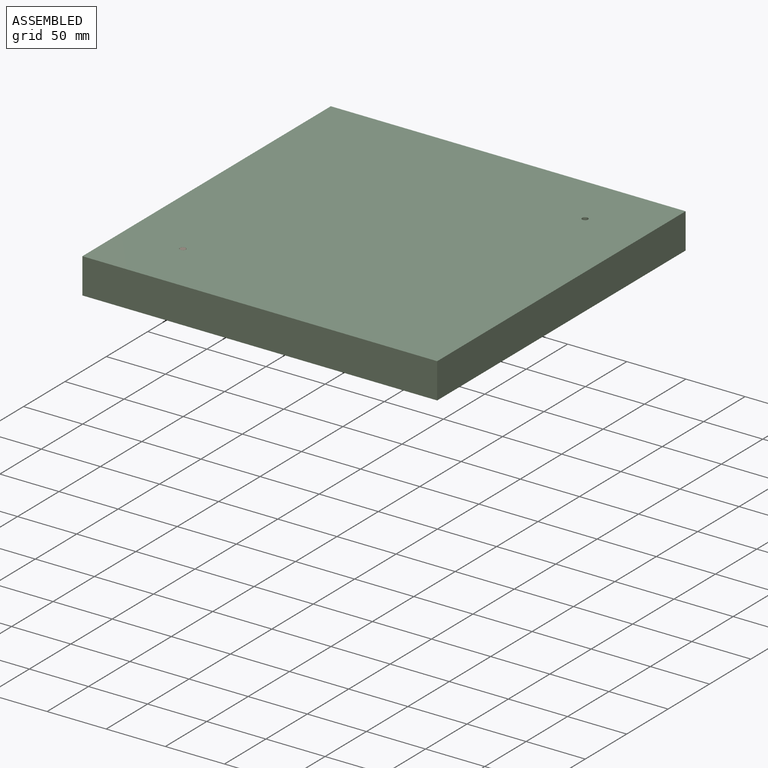
[diagram: assembled view]
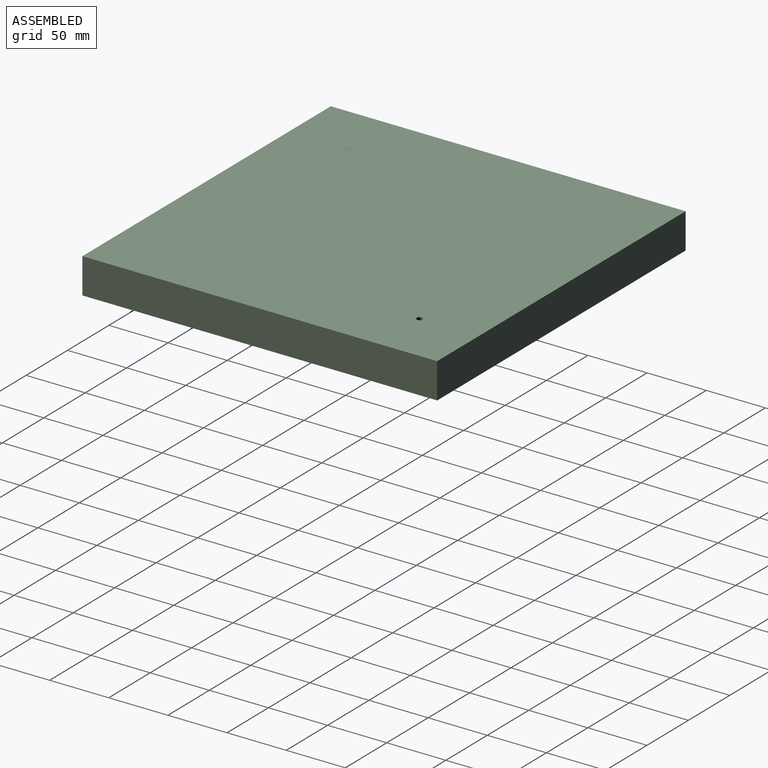
[diagram: assembled view, second angle]
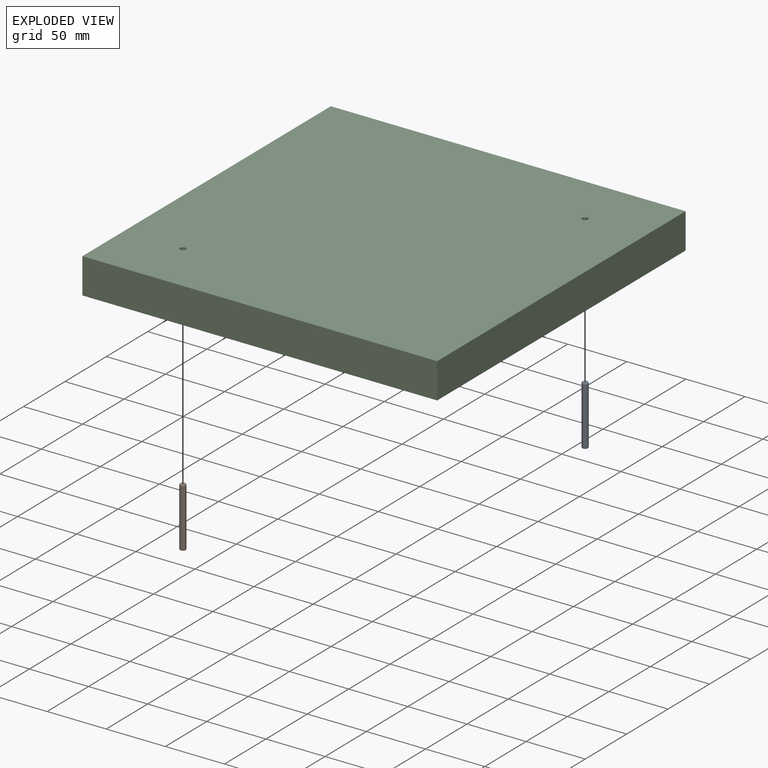
[diagram: exploded view]
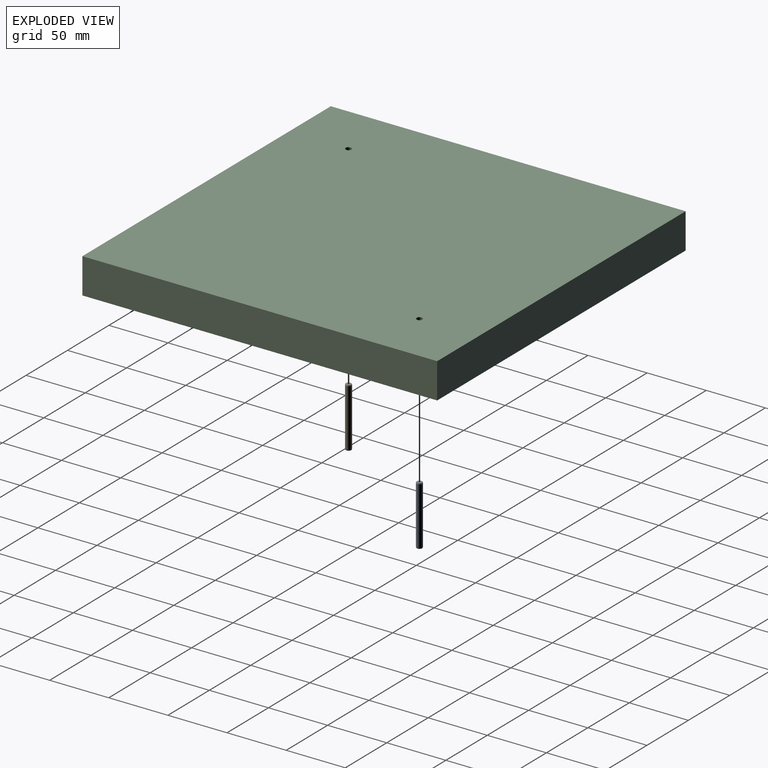
[diagram: exploded view, second angle]
ASSEMBLY  parts=3 mates=2
PART A: 5 faces, bbox 5x5x50 mm
  f0: plane 4.66x4.66mm, normal (0,0,1), area 17.1mm2, adj f1
  f1: cone r=2.33mm half-angle=12deg, axis (0,0,-1), area 12.4mm2, adj f0,f2
  f2: cylinder r=2.5mm len=48.4mm, axis (0,0,-1), area 760.3mm2, adj f1,f3
  f3: cone r=2.5mm half-angle=12deg, axis (0,0,1), area 12.4mm2, adj f2,f4
  f4: plane 4.66x4.66mm, normal (0,0,-1), area 17.1mm2, adj f3
PART B: same geometry as A
PART C: 8 faces, bbox 300x30x300 mm
  f0: plane 300x30mm, normal (0,0,1), area 9000mm2, adj f1,f3,f4,f5
  f1: plane 300x30mm, normal (-1,0,0), area 9000mm2, adj f0,f2,f4,f5
  f2: plane 300x30mm, normal (0,0,-1), area 9000mm2, adj f1,f3,f4,f5
  f3: plane 300x30mm, normal (1,0,0), area 9000mm2, adj f0,f2,f4,f5
  f4: plane 300x300mm, normal (0,-1,0), area 89960.7mm2, adj f0,f1,f2,f3,f6,f7
  f5: plane 300x300mm, normal (0,1,0), area 89960.7mm2, adj f0,f1,f2,f3,f6,f7
  f6: cylinder r=2.5mm len=30mm, axis (0,-1,0), area 471.2mm2, adj f4,f5
  f7: cylinder r=2.5mm len=30mm, axis (0,-1,0), area 471.2mm2, adj f4,f5
PLACE A t=(-417.49,310.43,62.62)mm
PLACE B t=(-617.49,110.43,67.62)mm
PLACE C rot(axis=(1,0,0),90deg) t=(-667.49,60.43,92.62)mm fixed
MATE pin_slot A.f1 <-> C.f7  axis (0,0,1) through (-417.49,310.43,62.62)mm
MATE pin_slot C.f6 <-> B.f1  axis (0,0,1) through (-617.49,110.43,92.62)mm
